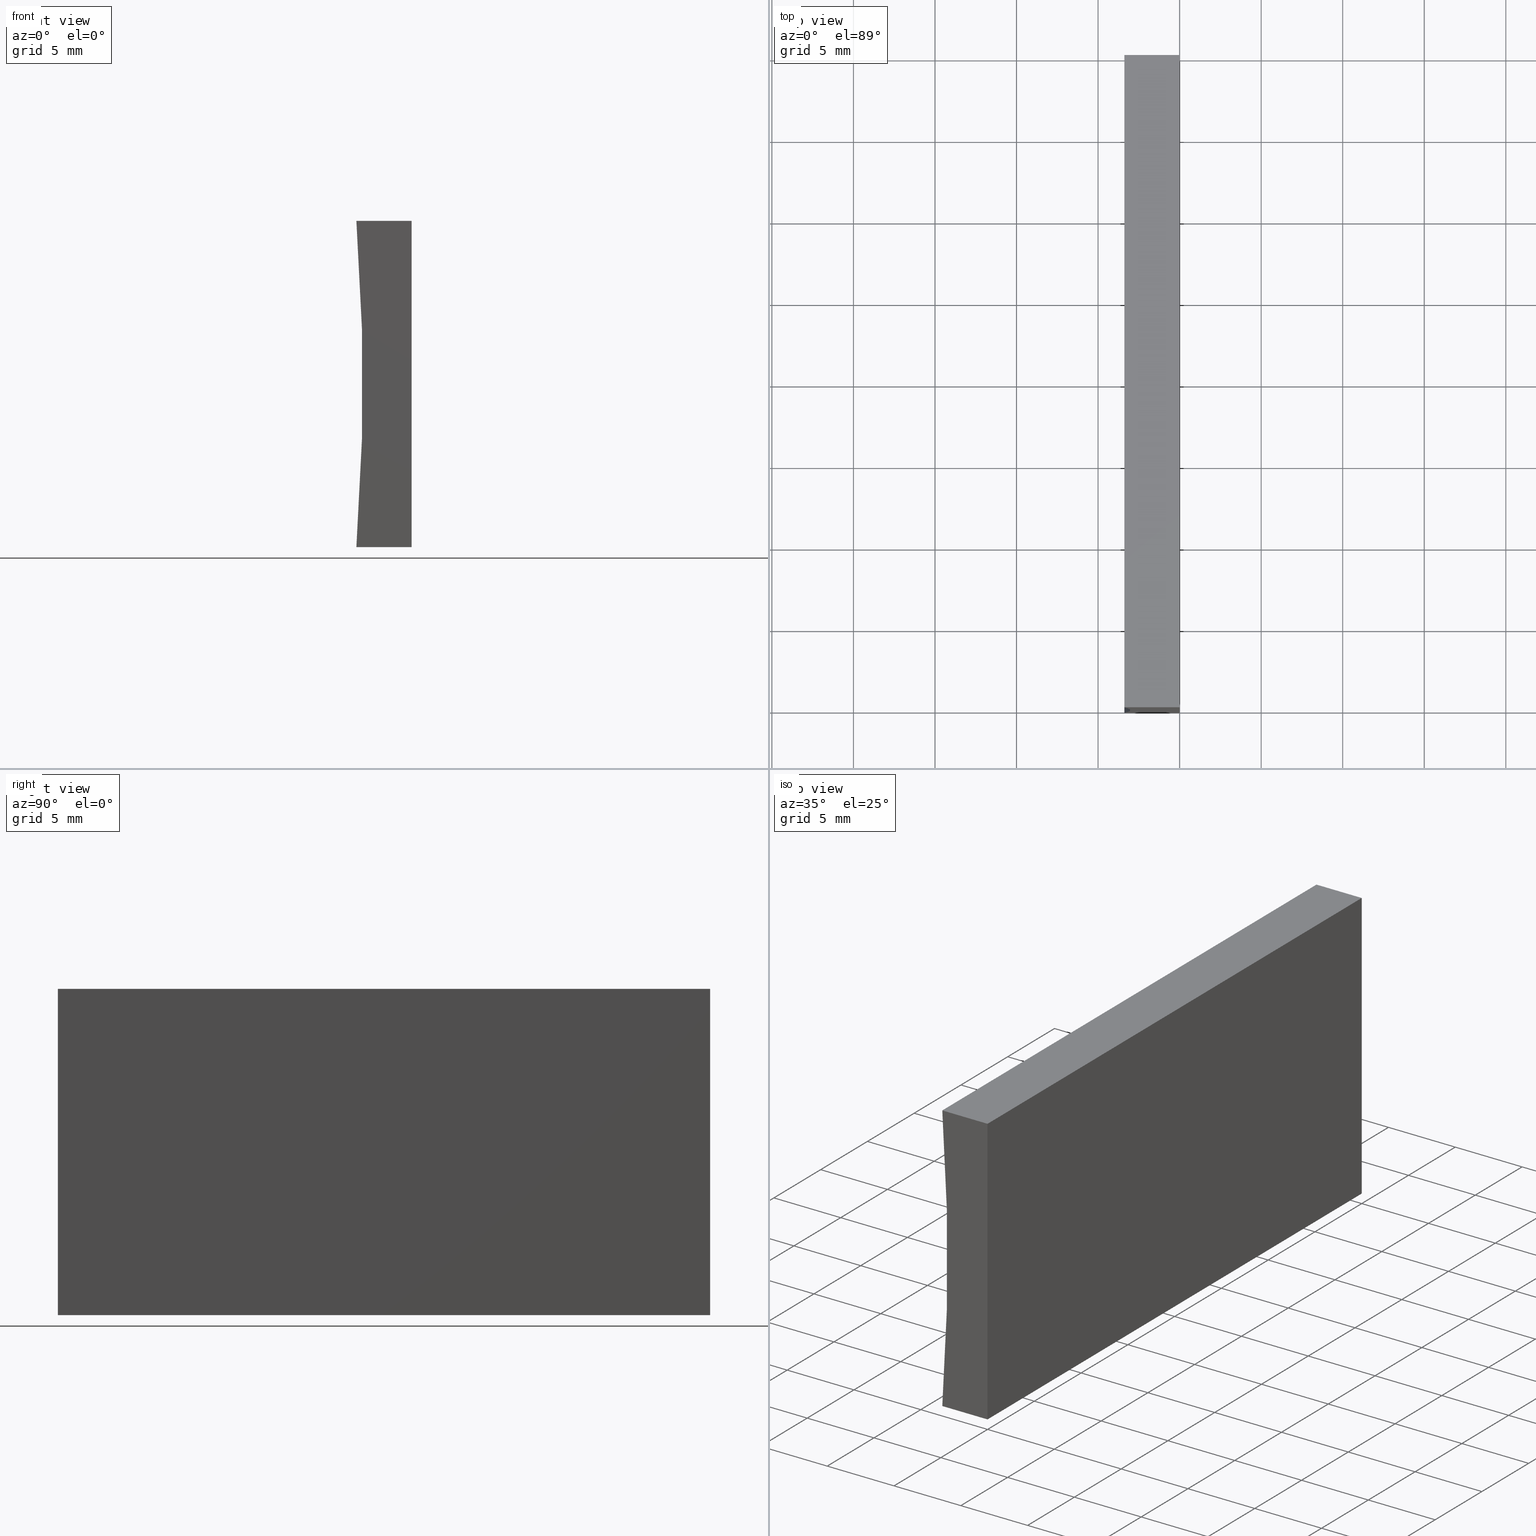
[diagram: canonical four-view strip — front | top / right | iso, engineering-drawing reading convention]
A machine part, canonical four-view strip (front | top / right | iso — engineering-drawing reading convention). The complete STEP part file that produces these views, byte-faithful:
ISO-10303-21;
HEADER;
FILE_DESCRIPTION (( 'STEP AP214' ),
    '1' );
FILE_NAME ('155360.STEP',
    '2019-06-28T07:24:37',
    ( 'user' ),
    ( '΢���й�' ),
    'SwSTEP 2.0',
    'SolidWorks 2016',
    '' );
FILE_SCHEMA (( 'AUTOMOTIVE_DESIGN' ));
ENDSEC;

DATA;
#1 = CARTESIAN_POINT ( 'NONE',  ( -3.387427854322250000, 40.00000000000000000, 1.214306433183765000E-014 ) ) ;
#2 =( NAMED_UNIT ( * ) SI_UNIT ( $, .STERADIAN. ) SOLID_ANGLE_UNIT ( ) );
#3 = EDGE_LOOP ( 'NONE', ( #196, #32, #201, #31 ) ) ;
#4 = FILL_AREA_STYLE_COLOUR ( '', #184 ) ;
#5 = ORIENTED_EDGE ( 'NONE', *, *, #178, .T. ) ;
#6 = CARTESIAN_POINT ( 'NONE',  ( 0.0000000000000000000, 0.0000000000000000000, 0.0000000000000000000 ) ) ;
#7 =( GEOMETRIC_REPRESENTATION_CONTEXT ( 3 ) GLOBAL_UNCERTAINTY_ASSIGNED_CONTEXT ( ( #56 ) ) GLOBAL_UNIT_ASSIGNED_CONTEXT ( ( #116, #26, #103 ) ) REPRESENTATION_CONTEXT ( 'NONE', 'WORKASPACE' ) );
#8 = EDGE_CURVE ( 'NONE', #13, #55, #180, .T. ) ;
#9 = CARTESIAN_POINT ( 'NONE',  ( -132.2500000000000000, 40.00000000000000000, 10.00000000000001600 ) ) ;
#10 = CIRCLE ( 'NONE', #23, 129.2500000000000000 ) ;
#11 = DIRECTION ( 'NONE',  ( -0.0000000000000000000, -1.000000000000000000, -0.0000000000000000000 ) ) ;
#12 = ORIENTED_EDGE ( 'NONE', *, *, #74, .F. ) ;
#13 = VERTEX_POINT ( 'NONE', #161 ) ;
#14 = AXIS2_PLACEMENT_3D ( 'NONE', #176, #59, #155 ) ;
#15 = PLANE ( 'NONE',  #30 ) ;
#16 = CARTESIAN_POINT ( 'NONE',  ( 0.0000000000000000000, 40.00000000000000000, 0.0000000000000000000 ) ) ;
#17 = ORIENTED_EDGE ( 'NONE', *, *, #135, .F. ) ;
#18 = DIRECTION ( 'NONE',  ( 0.0000000000000000000, 1.000000000000000000, 0.0000000000000000000 ) ) ;
#19 = DIRECTION ( 'NONE',  ( 0.0000000000000000000, -0.0000000000000000000, 1.000000000000000000 ) ) ;
#20 = ORIENTED_EDGE ( 'NONE', *, *, #96, .F. ) ;
#21 = AXIS2_PLACEMENT_3D ( 'NONE', #152, #139, #128 ) ;
#22 = VERTEX_POINT ( 'NONE', #177 ) ;
#23 = AXIS2_PLACEMENT_3D ( 'NONE', #9, #11, #104 ) ;
#24 = FACE_OUTER_BOUND ( 'NONE', #93, .T. ) ;
#25 = ORIENTED_EDGE ( 'NONE', *, *, #8, .T. ) ;
#26 =( NAMED_UNIT ( * ) PLANE_ANGLE_UNIT ( ) SI_UNIT ( $, .RADIAN. ) );
#27 = LINE ( 'NONE', #46, #144 ) ;
#28 = SHAPE_DEFINITION_REPRESENTATION ( #132, #204 ) ;
#29 = VECTOR ( 'NONE', #121, 1000.000000000000000 ) ;
#30 = AXIS2_PLACEMENT_3D ( 'NONE', #138, #18, #65 ) ;
#31 = ORIENTED_EDGE ( 'NONE', *, *, #156, .F. ) ;
#32 = ORIENTED_EDGE ( 'NONE', *, *, #173, .F. ) ;
#33 = VECTOR ( 'NONE', #164, 1000.000000000000000 ) ;
#34 = CARTESIAN_POINT ( 'NONE',  ( 1.224646799147353300E-015, 40.00000000000000000, 20.00000000000000000 ) ) ;
#35 = LINE ( 'NONE', #73, #45 ) ;
#36 = EDGE_CURVE ( 'NONE', #122, #149, #158, .T. ) ;
#37 =( LENGTH_UNIT ( ) NAMED_UNIT ( * ) SI_UNIT ( .MILLI., .METRE. ) );
#38 = PRESENTATION_STYLE_ASSIGNMENT (( #43 ) ) ;
#39 = CARTESIAN_POINT ( 'NONE',  ( -3.387427854322250000, 40.00000000000000000, 1.214306433183765000E-014 ) ) ;
#40 = APPLICATION_CONTEXT ( 'automotive_design' ) ;
#41 = EDGE_CURVE ( 'NONE', #126, #22, #80, .T. ) ;
#42 = ORIENTED_EDGE ( 'NONE', *, *, #62, .T. ) ;
#43 = SURFACE_STYLE_USAGE ( .BOTH. , #71 ) ;
#44 = EDGE_LOOP ( 'NONE', ( #88, #70, #47, #90 ) ) ;
#45 = VECTOR ( 'NONE', #113, 1000.000000000000000 ) ;
#46 = CARTESIAN_POINT ( 'NONE',  ( 0.0000000000000000000, 40.00000000000000000, 0.0000000000000000000 ) ) ;
#47 = ORIENTED_EDGE ( 'NONE', *, *, #146, .F. ) ;
#48 = AXIS2_PLACEMENT_3D ( 'NONE', #187, #199, #125 ) ;
#49 = ADVANCED_FACE ( 'NONE', ( #66 ), #131, .T. ) ;
#50 = PRODUCT_DEFINITION_CONTEXT ( 'detailed design', #40, 'design' ) ;
#51 = CARTESIAN_POINT ( 'NONE',  ( 0.0000000000000000000, 40.00000000000000000, 0.0000000000000000000 ) ) ;
#52 = CYLINDRICAL_SURFACE ( 'NONE', #186, 129.2500000000000000 ) ;
#53 = ORIENTED_EDGE ( 'NONE', *, *, #135, .T. ) ;
#54 = ADVANCED_FACE ( 'NONE', ( #98 ), #52, .F. ) ;
#55 = VERTEX_POINT ( 'NONE', #105 ) ;
#56 = UNCERTAINTY_MEASURE_WITH_UNIT (LENGTH_MEASURE( 1.000000000000000100E-005 ), #116, 'distance_accuracy_value', 'NONE');
#57 = STYLED_ITEM ( 'NONE', ( #38 ), #204 ) ;
#58 = VECTOR ( 'NONE', #141, 1000.000000000000000 ) ;
#59 = DIRECTION ( 'NONE',  ( 0.0000000000000000000, 0.0000000000000000000, 1.000000000000000000 ) ) ;
#60 = ADVANCED_FACE ( 'NONE', ( #24 ), #191, .F. ) ;
#61 = PRESENTATION_LAYER_ASSIGNMENT (  '', '', ( #57 ) ) ;
#62 = EDGE_CURVE ( 'NONE', #13, #106, #130, .T. ) ;
#63 = CARTESIAN_POINT ( 'NONE',  ( 1.224646799147353300E-015, 40.00000000000000000, 20.00000000000000000 ) ) ;
#64 = SURFACE_STYLE_FILL_AREA ( #193 ) ;
#65 = DIRECTION ( 'NONE',  ( 0.0000000000000000000, -0.0000000000000000000, 1.000000000000000000 ) ) ;
#66 = FACE_OUTER_BOUND ( 'NONE', #154, .T. ) ;
#67 = CARTESIAN_POINT ( 'NONE',  ( -132.2500000000000000, 40.00000000000000000, 10.00000000000001600 ) ) ;
#68 = ORIENTED_EDGE ( 'NONE', *, *, #36, .T. ) ;
#69 = SURFACE_SIDE_STYLE ('',( #159 ) ) ;
#70 = ORIENTED_EDGE ( 'NONE', *, *, #36, .F. ) ;
#71 = SURFACE_SIDE_STYLE ('',( #64 ) ) ;
#72 = CARTESIAN_POINT ( 'NONE',  ( 1.224646799147353300E-015, 40.00000000000000000, 20.00000000000000000 ) ) ;
#73 = CARTESIAN_POINT ( 'NONE',  ( 0.0000000000000000000, 0.0000000000000000000, 0.0000000000000000000 ) ) ;
#74 = EDGE_CURVE ( 'NONE', #122, #126, #188, .T. ) ;
#75 = APPLICATION_CONTEXT ( 'automotive_design' ) ;
#76 = PLANE ( 'NONE',  #129 ) ;
#77 = ORIENTED_EDGE ( 'NONE', *, *, #41, .F. ) ;
#78 = DIRECTION ( 'NONE',  ( -1.000000000000000000, 0.0000000000000000000, 0.0000000000000000000 ) ) ;
#79 = SURFACE_STYLE_USAGE ( .BOTH. , #69 ) ;
#80 = LINE ( 'NONE', #34, #200 ) ;
#81 = EDGE_CURVE ( 'NONE', #149, #22, #150, .T. ) ;
#82 = ORIENTED_EDGE ( 'NONE', *, *, #74, .T. ) ;
#83 = CIRCLE ( 'NONE', #48, 129.2500000000000000 ) ;
#84 = ORIENTED_EDGE ( 'NONE', *, *, #81, .T. ) ;
#85 = LINE ( 'NONE', #6, #29 ) ;
#86 = DIRECTION ( 'NONE',  ( 0.0000000000000000000, 1.000000000000000000, 0.0000000000000000000 ) ) ;
#87 = ORIENTED_EDGE ( 'NONE', *, *, #173, .T. ) ;
#88 = ORIENTED_EDGE ( 'NONE', *, *, #156, .T. ) ;
#89 = PRODUCT_RELATED_PRODUCT_CATEGORY ( 'part', '', ( #142 ) ) ;
#90 = ORIENTED_EDGE ( 'NONE', *, *, #96, .T. ) ;
#91 =( LENGTH_UNIT ( ) NAMED_UNIT ( * ) SI_UNIT ( .MILLI., .METRE. ) );
#92 = DIRECTION ( 'NONE',  ( -1.000000000000000000, 0.0000000000000000000, 6.123233995736766000E-017 ) ) ;
#93 = EDGE_LOOP ( 'NONE', ( #5, #20, #145, #25 ) ) ;
#94 = CARTESIAN_POINT ( 'NONE',  ( -3.387427854322250000, 0.0000000000000000000, 1.214306433183765000E-014 ) ) ;
#95 = MANIFOLD_SOLID_BREP ( '͹̨-����1', #148 ) ;
#96 = EDGE_CURVE ( 'NONE', #106, #112, #165, .T. ) ;
#97 = ADVANCED_FACE ( 'NONE', ( #170 ), #15, .F. ) ;
#98 = FACE_OUTER_BOUND ( 'NONE', #44, .T. ) ;
#99 = FILL_AREA_STYLE_COLOUR ( '', #198 ) ;
#100 = FILL_AREA_STYLE ('',( #4 ) ) ;
#101 = MECHANICAL_DESIGN_GEOMETRIC_PRESENTATION_REPRESENTATION (  '', ( #160 ), #115 ) ;
#102 = ORIENTED_EDGE ( 'NONE', *, *, #8, .F. ) ;
#103 =( NAMED_UNIT ( * ) SI_UNIT ( $, .STERADIAN. ) SOLID_ANGLE_UNIT ( ) );
#104 = DIRECTION ( 'NONE',  ( 0.0000000000000000000, 0.0000000000000000000, 1.000000000000000000 ) ) ;
#105 = CARTESIAN_POINT ( 'NONE',  ( 0.0000000000000000000, 0.0000000000000000000, 0.0000000000000000000 ) ) ;
#106 = VERTEX_POINT ( 'NONE', #1 ) ;
#107 = PRODUCT_DEFINITION_FORMATION_WITH_SPECIFIED_SOURCE ( '�κ�', '', #142, .NOT_KNOWN. ) ;
#108 = ORIENTED_EDGE ( 'NONE', *, *, #41, .T. ) ;
#109 = VECTOR ( 'NONE', #195, 1000.000000000000000 ) ;
#110 = FACE_OUTER_BOUND ( 'NONE', #185, .T. ) ;
#111 = AXIS2_PLACEMENT_3D ( 'NONE', #189, #19, #169 ) ;
#112 = VERTEX_POINT ( 'NONE', #94 ) ;
#113 = DIRECTION ( 'NONE',  ( -6.123233995736766000E-017, -0.0000000000000000000, -1.000000000000000000 ) ) ;
#114 = DIRECTION ( 'NONE',  ( -6.123233995736766000E-017, -0.0000000000000000000, -1.000000000000000000 ) ) ;
#115 =( GEOMETRIC_REPRESENTATION_CONTEXT ( 3 ) GLOBAL_UNCERTAINTY_ASSIGNED_CONTEXT ( ( #137 ) ) GLOBAL_UNIT_ASSIGNED_CONTEXT ( ( #37, #203, #2 ) ) REPRESENTATION_CONTEXT ( 'NONE', 'WORKASPACE' ) );
#116 =( LENGTH_UNIT ( ) NAMED_UNIT ( * ) SI_UNIT ( .MILLI., .METRE. ) );
#117 = DIRECTION ( 'NONE',  ( 1.000000000000000000, -0.0000000000000000000, -0.0000000000000000000 ) ) ;
#118 = ORIENTED_EDGE ( 'NONE', *, *, #146, .T. ) ;
#119 =( GEOMETRIC_REPRESENTATION_CONTEXT ( 3 ) GLOBAL_UNCERTAINTY_ASSIGNED_CONTEXT ( ( #162 ) ) GLOBAL_UNIT_ASSIGNED_CONTEXT ( ( #91, #172, #194 ) ) REPRESENTATION_CONTEXT ( 'NONE', 'WORKASPACE' ) );
#120 = CARTESIAN_POINT ( 'NONE',  ( -3.387427854322250500, 0.0000000000000000000, 20.00000000000000000 ) ) ;
#121 = DIRECTION ( 'NONE',  ( -1.000000000000000000, 0.0000000000000000000, 0.0000000000000000000 ) ) ;
#122 = VERTEX_POINT ( 'NONE', #133 ) ;
#123 = PRODUCT_CONTEXT ( 'NONE', #75, 'mechanical' ) ;
#124 = VECTOR ( 'NONE', #117, 1000.000000000000000 ) ;
#125 = DIRECTION ( 'NONE',  ( 0.0000000000000000000, 0.0000000000000000000, 1.000000000000000000 ) ) ;
#126 = VERTEX_POINT ( 'NONE', #63 ) ;
#127 = CARTESIAN_POINT ( 'NONE',  ( -132.2500000000000000, 40.00000000000000000, 10.00000000000001600 ) ) ;
#128 = DIRECTION ( 'NONE',  ( -1.000000000000000000, 0.0000000000000000000, -0.0000000000000000000 ) ) ;
#129 = AXIS2_PLACEMENT_3D ( 'NONE', #183, #92, #153 ) ;
#130 = LINE ( 'NONE', #16, #136 ) ;
#131 = PLANE ( 'NONE',  #147 ) ;
#132 = PRODUCT_DEFINITION_SHAPE ( 'NONE', 'NONE',  #140 ) ;
#133 = CARTESIAN_POINT ( 'NONE',  ( -3.387427854322250500, 40.00000000000000000, 20.00000000000000000 ) ) ;
#134 = PRESENTATION_STYLE_ASSIGNMENT (( #79 ) ) ;
#135 = EDGE_CURVE ( 'NONE', #126, #13, #27, .T. ) ;
#136 = VECTOR ( 'NONE', #78, 1000.000000000000000 ) ;
#137 = UNCERTAINTY_MEASURE_WITH_UNIT (LENGTH_MEASURE( 1.000000000000000100E-005 ), #37, 'distance_accuracy_value', 'NONE');
#138 = CARTESIAN_POINT ( 'NONE',  ( -132.2500000000000000, 0.0000000000000000000, 10.00000000000001600 ) ) ;
#139 = DIRECTION ( 'NONE',  ( 0.0000000000000000000, 0.0000000000000000000, -1.000000000000000000 ) ) ;
#140 = PRODUCT_DEFINITION ( 'δ֪', '', #107, #50 ) ;
#141 = DIRECTION ( 'NONE',  ( -0.0000000000000000000, -1.000000000000000000, -0.0000000000000000000 ) ) ;
#142 = PRODUCT ( '155360', '155360', '', ( #123 ) ) ;
#143 = DIRECTION ( 'NONE',  ( -0.0000000000000000000, -1.000000000000000000, -0.0000000000000000000 ) ) ;
#144 = VECTOR ( 'NONE', #114, 1000.000000000000000 ) ;
#145 = ORIENTED_EDGE ( 'NONE', *, *, #62, .F. ) ;
#146 = EDGE_CURVE ( 'NONE', #106, #122, #10, .T. ) ;
#147 = AXIS2_PLACEMENT_3D ( 'NONE', #127, #86, #181 ) ;
#148 = CLOSED_SHELL ( 'NONE', ( #60, #54, #166, #171, #49, #97 ) ) ;
#149 = VERTEX_POINT ( 'NONE', #120 ) ;
#150 = LINE ( 'NONE', #202, #109 ) ;
#151 = PRESENTATION_LAYER_ASSIGNMENT (  '', '', ( #160 ) ) ;
#152 = CARTESIAN_POINT ( 'NONE',  ( 1.224646799147353300E-015, 40.00000000000000000, 20.00000000000000000 ) ) ;
#153 = DIRECTION ( 'NONE',  ( 6.123233995736766000E-017, 0.0000000000000000000, 1.000000000000000000 ) ) ;
#154 = EDGE_LOOP ( 'NONE', ( #42, #118, #82, #53 ) ) ;
#155 = DIRECTION ( 'NONE',  ( 1.000000000000000000, 0.0000000000000000000, 0.0000000000000000000 ) ) ;
#156 = EDGE_CURVE ( 'NONE', #112, #149, #83, .T. ) ;
#157 = APPLICATION_PROTOCOL_DEFINITION ( 'draft international standard', 'automotive_design', 1998, #75 ) ;
#158 = LINE ( 'NONE', #167, #33 ) ;
#159 = SURFACE_STYLE_FILL_AREA ( #100 ) ;
#160 = STYLED_ITEM ( 'NONE', ( #134 ), #95 ) ;
#161 = CARTESIAN_POINT ( 'NONE',  ( 0.0000000000000000000, 40.00000000000000000, 0.0000000000000000000 ) ) ;
#162 = UNCERTAINTY_MEASURE_WITH_UNIT (LENGTH_MEASURE( 1.000000000000000100E-005 ), #91, 'distance_accuracy_value', 'NONE');
#163 = FACE_OUTER_BOUND ( 'NONE', #168, .T. ) ;
#164 = DIRECTION ( 'NONE',  ( -0.0000000000000000000, -1.000000000000000000, -0.0000000000000000000 ) ) ;
#165 = LINE ( 'NONE', #39, #58 ) ;
#166 = ADVANCED_FACE ( 'NONE', ( #110 ), #192, .F. ) ;
#167 = CARTESIAN_POINT ( 'NONE',  ( -3.387427854322250500, 40.00000000000000000, 20.00000000000000000 ) ) ;
#168 = EDGE_LOOP ( 'NONE', ( #87, #102, #17, #108 ) ) ;
#169 = DIRECTION ( 'NONE',  ( 1.000000000000000000, 0.0000000000000000000, -0.0000000000000000000 ) ) ;
#170 = FACE_OUTER_BOUND ( 'NONE', #3, .T. ) ;
#171 = ADVANCED_FACE ( 'NONE', ( #163 ), #76, .F. ) ;
#172 =( NAMED_UNIT ( * ) PLANE_ANGLE_UNIT ( ) SI_UNIT ( $, .RADIAN. ) );
#173 = EDGE_CURVE ( 'NONE', #22, #55, #35, .T. ) ;
#174 = APPLICATION_PROTOCOL_DEFINITION ( 'draft international standard', 'automotive_design', 1998, #40 ) ;
#175 = MECHANICAL_DESIGN_GEOMETRIC_PRESENTATION_REPRESENTATION (  '', ( #57 ), #119 ) ;
#176 = CARTESIAN_POINT ( 'NONE',  ( 0.0000000000000000000, 0.0000000000000000000, 0.0000000000000000000 ) ) ;
#177 = CARTESIAN_POINT ( 'NONE',  ( 1.224646799147353300E-015, 0.0000000000000000000, 20.00000000000000000 ) ) ;
#178 = EDGE_CURVE ( 'NONE', #55, #112, #85, .T. ) ;
#179 = DIRECTION ( 'NONE',  ( -0.0000000000000000000, -1.000000000000000000, -0.0000000000000000000 ) ) ;
#180 = LINE ( 'NONE', #51, #197 ) ;
#181 = DIRECTION ( 'NONE',  ( 0.0000000000000000000, -0.0000000000000000000, 1.000000000000000000 ) ) ;
#182 = DIRECTION ( 'NONE',  ( 0.0000000000000000000, 0.0000000000000000000, -1.000000000000000000 ) ) ;
#183 = CARTESIAN_POINT ( 'NONE',  ( 0.0000000000000000000, 40.00000000000000000, 0.0000000000000000000 ) ) ;
#184 = COLOUR_RGB ( '',1.000000000000000000, 1.000000000000000000, 1.000000000000000000 ) ;
#185 = EDGE_LOOP ( 'NONE', ( #84, #77, #12, #68 ) ) ;
#186 = AXIS2_PLACEMENT_3D ( 'NONE', #67, #190, #182 ) ;
#187 = CARTESIAN_POINT ( 'NONE',  ( -132.2500000000000000, 0.0000000000000000000, 10.00000000000001600 ) ) ;
#188 = LINE ( 'NONE', #72, #124 ) ;
#189 = CARTESIAN_POINT ( 'NONE',  ( 0.0000000000000000000, 40.00000000000000000, 0.0000000000000000000 ) ) ;
#190 = DIRECTION ( 'NONE',  ( -0.0000000000000000000, -1.000000000000000000, -0.0000000000000000000 ) ) ;
#191 = PLANE ( 'NONE',  #111 ) ;
#192 = PLANE ( 'NONE',  #21 ) ;
#193 = FILL_AREA_STYLE ('',( #99 ) ) ;
#194 =( NAMED_UNIT ( * ) SI_UNIT ( $, .STERADIAN. ) SOLID_ANGLE_UNIT ( ) );
#195 = DIRECTION ( 'NONE',  ( 1.000000000000000000, -0.0000000000000000000, -0.0000000000000000000 ) ) ;
#196 = ORIENTED_EDGE ( 'NONE', *, *, #178, .F. ) ;
#197 = VECTOR ( 'NONE', #179, 1000.000000000000000 ) ;
#198 = COLOUR_RGB ( '',1.000000000000000000, 1.000000000000000000, 1.000000000000000000 ) ;
#199 = DIRECTION ( 'NONE',  ( -0.0000000000000000000, -1.000000000000000000, -0.0000000000000000000 ) ) ;
#200 = VECTOR ( 'NONE', #143, 1000.000000000000000 ) ;
#201 = ORIENTED_EDGE ( 'NONE', *, *, #81, .F. ) ;
#202 = CARTESIAN_POINT ( 'NONE',  ( 1.224646799147353300E-015, 0.0000000000000000000, 20.00000000000000000 ) ) ;
#203 =( NAMED_UNIT ( * ) PLANE_ANGLE_UNIT ( ) SI_UNIT ( $, .RADIAN. ) );
#204 = ADVANCED_BREP_SHAPE_REPRESENTATION ( '155360', ( #95, #14 ), #7 ) ;
ENDSEC;
END-ISO-10303-21;
